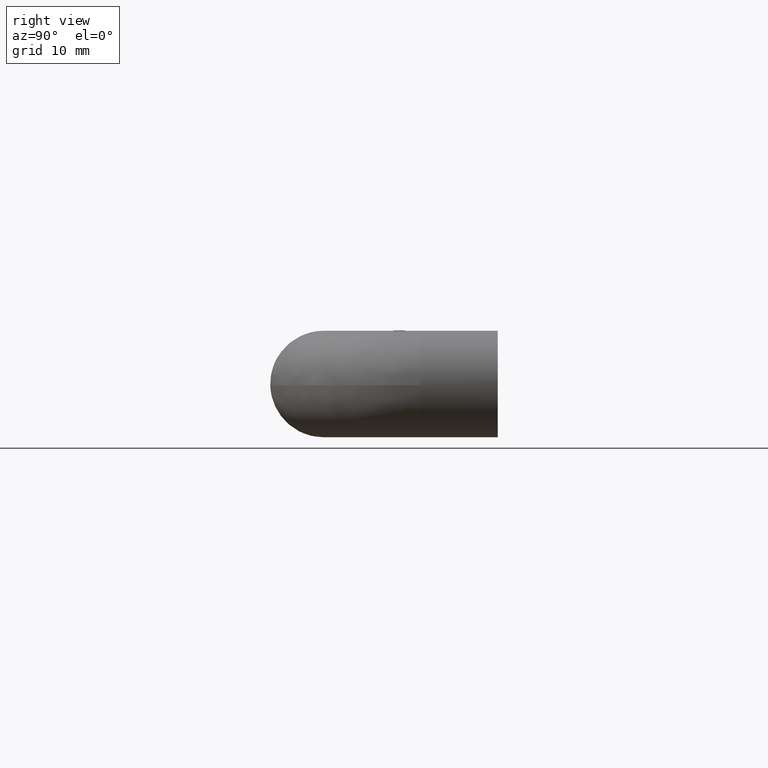
[diagram: clean part render]
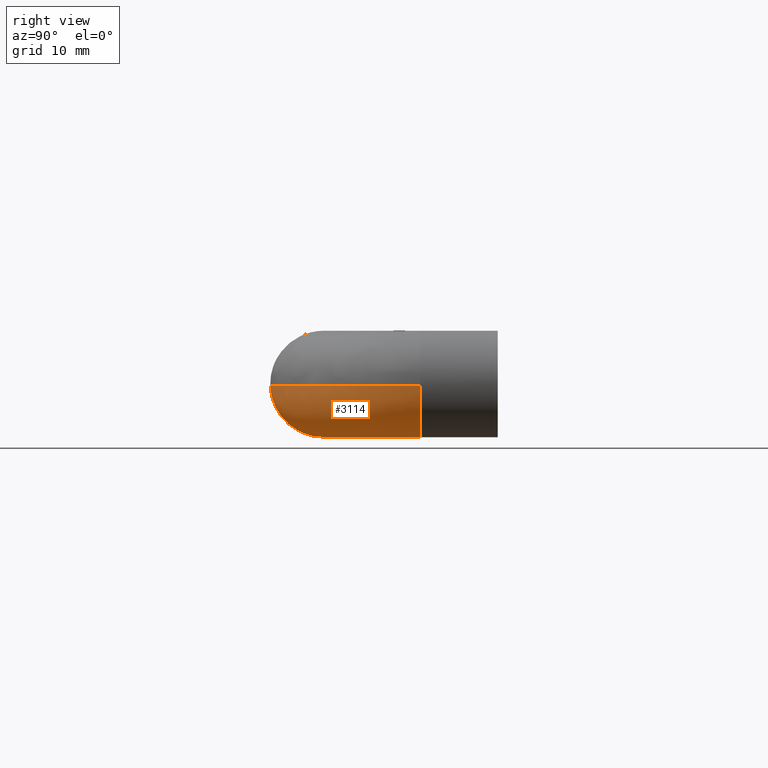
[diagram: same view with one face highlighted and labeled with its STEP entity id]
A machine part, right view. The second image highlights one B-rep face of the part: STEP entity #3114.
In plain terms, the highlighted face is a freeform B-spline surface patch.
Its self-contained STEP definition (entity closure, byte-faithful):
#2158=CARTESIAN_POINT('',(65.498263041057413,-8.000000000027701,-0.138215524967510));
#2159=VERTEX_POINT('',#2158);
#2175=CARTESIAN_POINT('',(60.0,-8.0,-5.500000000000000));
#2176=VERTEX_POINT('',#2175);
#2177=CARTESIAN_POINT('',(60.0,-8.0,-5.500000000000000));
#2178=CARTESIAN_POINT('',(65.363478318936671,-8.000000000000002,-5.500000000000001));
#2179=CARTESIAN_POINT('',(65.498263041057413,-8.000000000027701,-0.138215524967510));
#2187=(BOUNDED_CURVE()B_SPLINE_CURVE(2,(#2177,#2178,#2179),.UNSPECIFIED.,.F.,.U.)B_SPLINE_CURVE_WITH_KNOTS((3,3),(0.0,0.245579891767952),.UNSPECIFIED.)CURVE()GEOMETRIC_REPRESENTATION_ITEM()RATIONAL_B_SPLINE_CURVE((1.0,0.712285260096901,0.989826157677382))REPRESENTATION_ITEM(''));
#2188=EDGE_CURVE('',#2176,#2159,#2187,.T.);
#2190=CARTESIAN_POINT('',(59.861784475017387,-8.000000000050598,-5.498263041057037));
#2191=VERTEX_POINT('',#2190);
#2192=CARTESIAN_POINT('',(59.861784475017394,-8.000000000050598,-5.498263041057037));
#2193=CARTESIAN_POINT('',(59.930881323277134,-8.0,-5.500000000000000));
#2194=CARTESIAN_POINT('',(60.0,-8.0,-5.500000000000000));
#2202=(BOUNDED_CURVE()B_SPLINE_CURVE(2,(#2192,#2193,#2194),.UNSPECIFIED.,.F.,.U.)B_SPLINE_CURVE_WITH_KNOTS((3,3),(0.995579891766991,1.0),.UNSPECIFIED.)CURVE()GEOMETRIC_REPRESENTATION_ITEM()RATIONAL_B_SPLINE_CURVE((0.989826157675210,0.994821521088521,1.0))REPRESENTATION_ITEM(''));
#2203=EDGE_CURVE('',#2191,#2176,#2202,.T.);
#2353=CARTESIAN_POINT('',(50.000000000006551,-23.498263041057349,-0.138215524970261));
#2354=VERTEX_POINT('',#2353);
#2435=CARTESIAN_POINT('',(50.000000000537227,-17.861784474222301,-5.498263041037050));
#2436=VERTEX_POINT('',#2435);
#2452=CARTESIAN_POINT('',(50.0,-18.0,-5.500000000000000));
#2453=VERTEX_POINT('',#2452);
#2454=CARTESIAN_POINT('',(50.000000000537227,-17.861784474222297,-5.498263041037051));
#2455=CARTESIAN_POINT('',(50.0,-17.930881322481671,-5.500000000000000));
#2456=CARTESIAN_POINT('',(50.0,-18.0,-5.500000000000000));
#2464=(BOUNDED_CURVE()B_SPLINE_CURVE(2,(#2454,#2455,#2456),.UNSPECIFIED.,.F.,.U.)B_SPLINE_CURVE_WITH_KNOTS((3,3),(0.995579891716385,1.0),.UNSPECIFIED.)CURVE()GEOMETRIC_REPRESENTATION_ITEM()RATIONAL_B_SPLINE_CURVE((0.989826157560825,0.994821521029232,1.0))REPRESENTATION_ITEM(''));
#2465=EDGE_CURVE('',#2436,#2453,#2464,.T.);
#2467=CARTESIAN_POINT('',(50.0,-18.0,-5.500000000000000));
#2468=CARTESIAN_POINT('',(50.0,-23.363478318931307,-5.500000000000000));
#2469=CARTESIAN_POINT('',(50.000000000006544,-23.498263041057346,-0.138215524970261));
#2477=(BOUNDED_CURVE()B_SPLINE_CURVE(2,(#2467,#2468,#2469),.UNSPECIFIED.,.F.,.U.)B_SPLINE_CURVE_WITH_KNOTS((3,3),(0.0,0.245579891767777),.UNSPECIFIED.)CURVE()GEOMETRIC_REPRESENTATION_ITEM()RATIONAL_B_SPLINE_CURVE((1.0,0.712285260097106,0.989826157676986))REPRESENTATION_ITEM(''));
#2478=EDGE_CURVE('',#2453,#2354,#2477,.T.);
#3050=CARTESIAN_POINT('',(50.000000000537227,-17.861784474222297,-5.498263041037050));
#3051=CARTESIAN_POINT('',(59.861784474960459,-17.861784473987171,-5.498263041058148));
#3052=CARTESIAN_POINT('',(59.861784475017380,-8.000000000050598,-5.498263041057038));
#3060=(BOUNDED_CURVE()B_SPLINE_CURVE(2,(#3050,#3051,#3052),.UNSPECIFIED.,.F.,.U.)B_SPLINE_CURVE_WITH_KNOTS((3,3),(-1.733067862620052,-0.253787686452452),.UNSPECIFIED.)CURVE()GEOMETRIC_REPRESENTATION_ITEM()RATIONAL_B_SPLINE_CURVE((0.889551170286051,0.630646846341828,0.894193516997089))REPRESENTATION_ITEM(''));
#3061=EDGE_CURVE('',#2436,#2191,#3060,.T.);
#3067=CARTESIAN_POINT('',(50.000000000006544,-23.498263041057346,-0.138215524970261));
#3068=CARTESIAN_POINT('',(65.498263041002744,-23.498263041045053,-0.138215524938356));
#3069=CARTESIAN_POINT('',(65.498263041057413,-8.000000000027701,-0.138215524967510));
#3077=(BOUNDED_CURVE()B_SPLINE_CURVE(2,(#3067,#3068,#3069),.UNSPECIFIED.,.F.,.U.)B_SPLINE_CURVE_WITH_KNOTS((3,3),(-1.733067862732839,-0.253787686445438),.UNSPECIFIED.)CURVE()GEOMETRIC_REPRESENTATION_ITEM()RATIONAL_B_SPLINE_CURVE((0.889551170325532,0.630646846320507,0.894193516999588))REPRESENTATION_ITEM(''));
#3078=EDGE_CURVE('',#2354,#2159,#3077,.T.);
#3083=CARTESIAN_POINT('',(49.315185378032666,-17.797856434298936,-5.497256894546552));
#3084=CARTESIAN_POINT('',(60.581332028441750,-18.585296218823650,-5.497256894546551));
#3085=CARTESIAN_POINT('',(59.798112257867842,-7.318855407557721,-5.497256894546553));
#3086=CARTESIAN_POINT('',(49.313792133349416,-17.817790020625040,-5.497759208201918));
#3087=CARTESIAN_POINT('',(60.602859583662479,-18.606831839127981,-5.497759208201918));
#3088=CARTESIAN_POINT('',(59.818046364663026,-7.317469629492380,-5.497759208201919));
#3089=CARTESIAN_POINT('',(48.929032520213717,-23.322665837076073,-5.636478565996502));
#3090=CARTESIAN_POINT('',(66.547927178784434,-24.554126694458468,-5.636478565996502));
#3091=CARTESIAN_POINT('',(65.323065914285394,-6.934772003783580,-5.636478565996505));
#3092=CARTESIAN_POINT('',(48.919361521695393,-23.461031829885211,-0.118801513192561));
#3093=CARTESIAN_POINT('',(66.697357467049642,-24.703612965289018,-0.118801513192561));
#3094=CARTESIAN_POINT('',(65.461435519852330,-6.925152833671030,-0.118801513192561));
#3095=CARTESIAN_POINT('',(48.919327593562429,-23.461517250267875,-0.099444206877692));
#3096=CARTESIAN_POINT('',(66.697881703577977,-24.704137398217334,-0.099444206877692));
#3097=CARTESIAN_POINT('',(65.461920952909395,-6.925119087364281,-0.099444206877692));
#3105=(BOUNDED_SURFACE()B_SPLINE_SURFACE(2,2,((#3083,#3086,#3089,#3092,#3095),(#3084,#3087,#3090,#3093,#3096),(#3085,#3088,#3091,#3094,#3097)),.UNSPECIFIED.,.F.,.F.,.U.)B_SPLINE_SURFACE_WITH_KNOTS((3,3),(3,1,1,3),(0.0,28.245351506801288),(0.0,0.047048729131745,9.159747101339862,9.205317981393197),.UNSPECIFIED.)GEOMETRIC_REPRESENTATION_ITEM()RATIONAL_B_SPLINE_SURFACE(((0.919491763566523,0.918105497601958,0.648218385134922,0.918061953559090,0.919404675480788),(0.605071367176547,0.604159135141758,0.426559975916722,0.604130480993245,0.605014058879520),(0.924613316890407,0.923219329448239,0.651828950402101,0.923175542865802,0.924525743725532)))REPRESENTATION_ITEM('')SURFACE());
#3106=ORIENTED_EDGE('',*,*,#2188,.T.);
#3107=ORIENTED_EDGE('',*,*,#3078,.F.);
#3108=ORIENTED_EDGE('',*,*,#2478,.F.);
#3109=ORIENTED_EDGE('',*,*,#2465,.F.);
#3110=ORIENTED_EDGE('',*,*,#3061,.T.);
#3111=ORIENTED_EDGE('',*,*,#2203,.T.);
#3112=EDGE_LOOP('',(#3106,#3107,#3108,#3109,#3110,#3111));
#3113=FACE_OUTER_BOUND('',#3112,.T.);
#3114=ADVANCED_FACE('',(#3113),#3105,.T.);